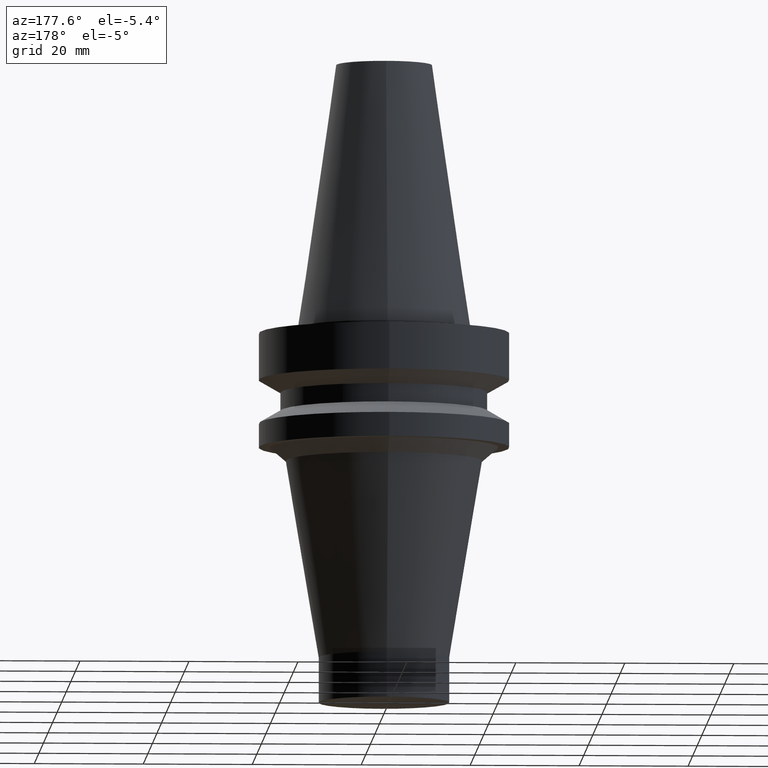
[diagram: clean part render]
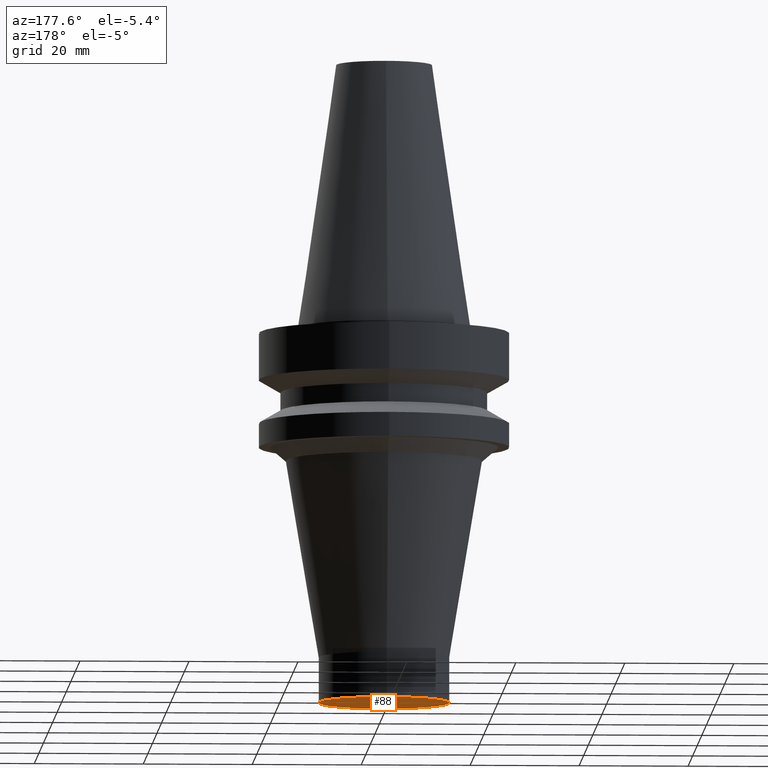
[diagram: same view with one face highlighted and labeled with its STEP entity id]
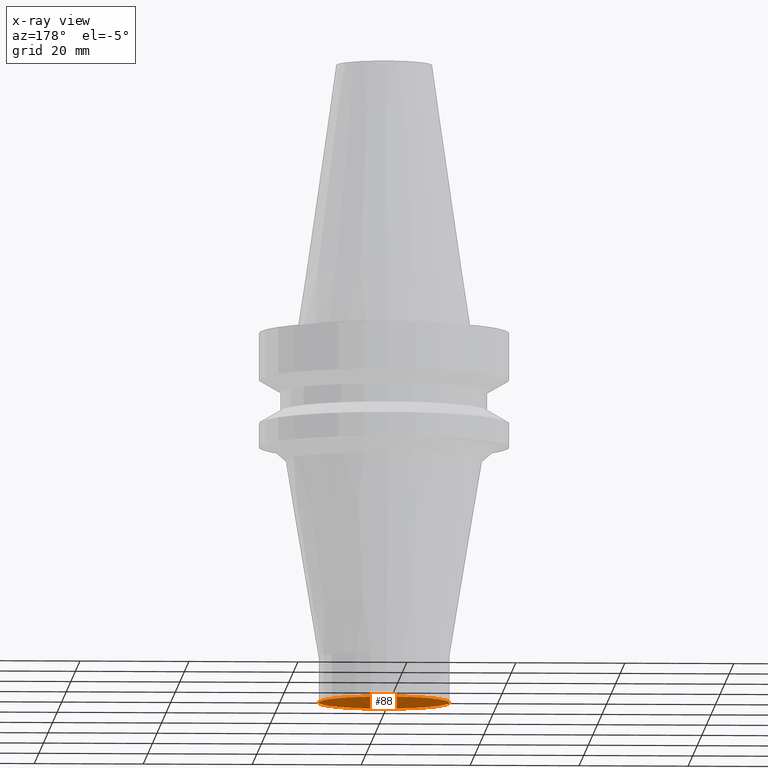
[diagram: x-ray of the same camera — body ghosted, the highlighted face saturated]
A machine part, auxiliary view. The second image highlights one B-rep face of the part: STEP entity #88.
The next image is the same camera in x-ray: the body ghosted, the highlighted face saturated — about 0% of this face is hidden behind the body in this view.
In plain terms, the highlighted planar face has unit normal (0, 0, -1).
Its self-contained STEP definition (entity closure, byte-faithful):
#88=ADVANCED_FACE('',(#128),#129,.T.);
#128=FACE_OUTER_BOUND('',#168,.T.);
#129=PLANE('',#169);
#168=EDGE_LOOP('',(#234));
#169=AXIS2_PLACEMENT_3D('',#235,#236,#237);
#234=ORIENTED_EDGE('',*,*,#250,.T.);
#235=CARTESIAN_POINT('',(4.22503145705837E-015,6.00000000000001,-69.0));
#236=DIRECTION('',(6.12323399573677E-017,1.22464679914735E-016,-1.0));
#237=DIRECTION('',(-1.23259516440783E-032,1.0,1.22464679914735E-016));
#250=EDGE_CURVE('',#275,#275,#276,.T.);
#275=VERTEX_POINT('',#301);
#276=CIRCLE('',#302,12.0);
#301=CARTESIAN_POINT('',(4.22503145705837E-015,12.0,-69.0));
#302=AXIS2_PLACEMENT_3D('',#339,#340,#341);
#339=CARTESIAN_POINT('',(4.22503145705837E-015,8.45006291411673E-015,-69.0));
#340=DIRECTION('',(6.12323399573677E-017,1.22464679914735E-016,-1.0));
#341=DIRECTION('',(-1.23259516440783E-032,1.0,1.22464679914735E-016));